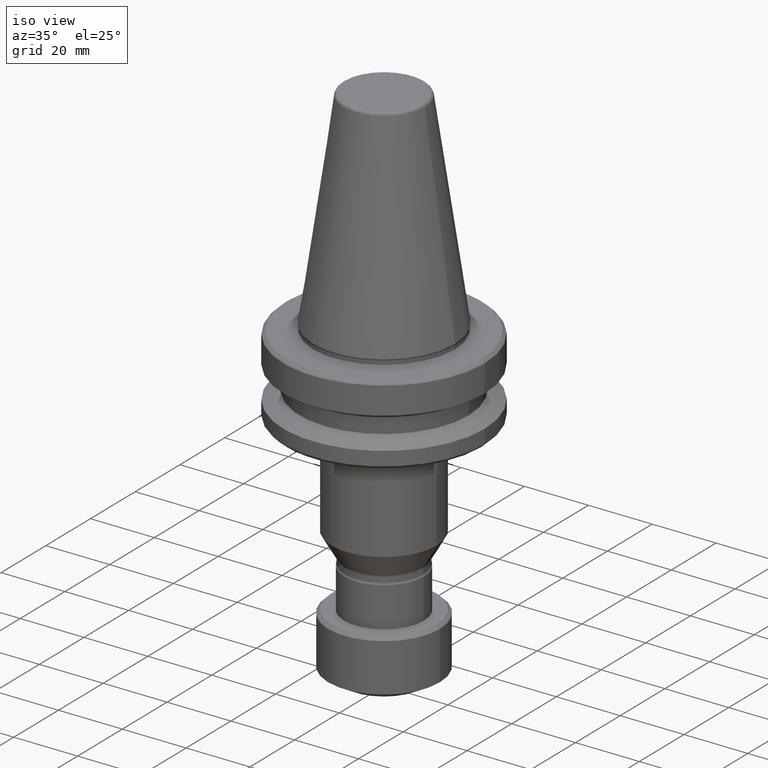
[diagram: clean part render]
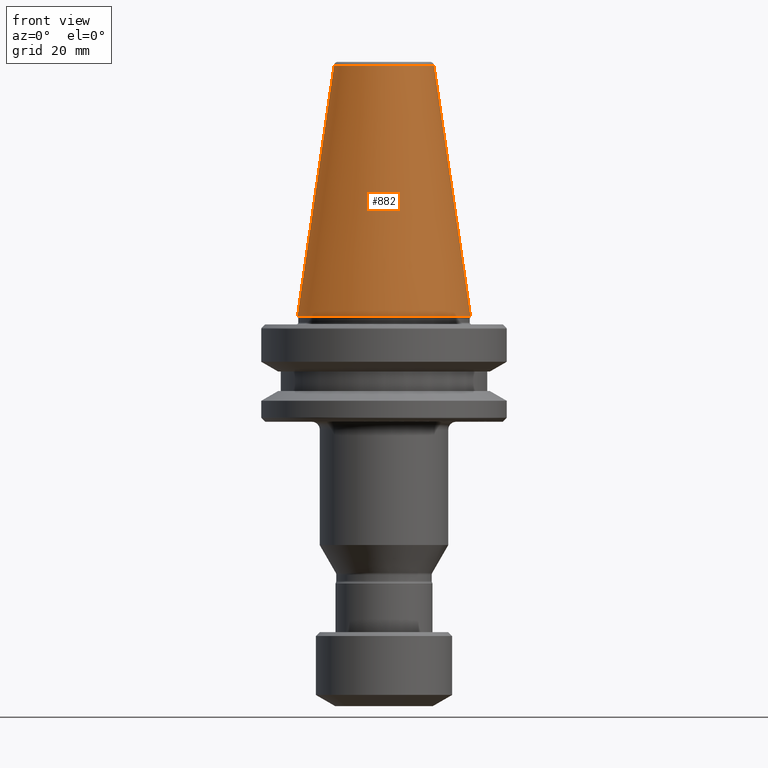
[diagram: tour spotlight — one face highlighted and labeled with its STEP entity id]
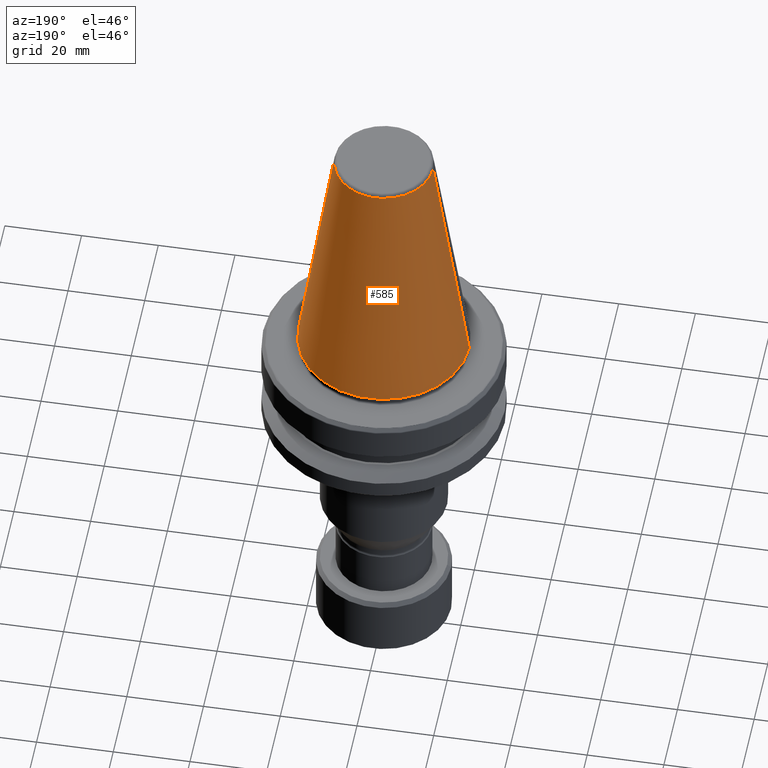
[diagram: tour spotlight — one face highlighted and labeled with its STEP entity id]
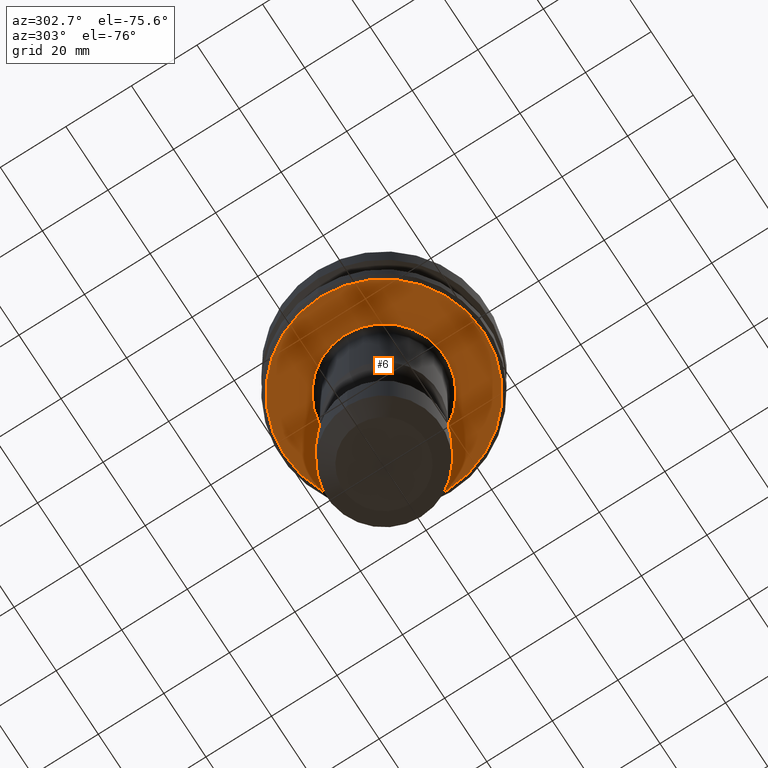
[diagram: tour spotlight — one face highlighted and labeled with its STEP entity id]
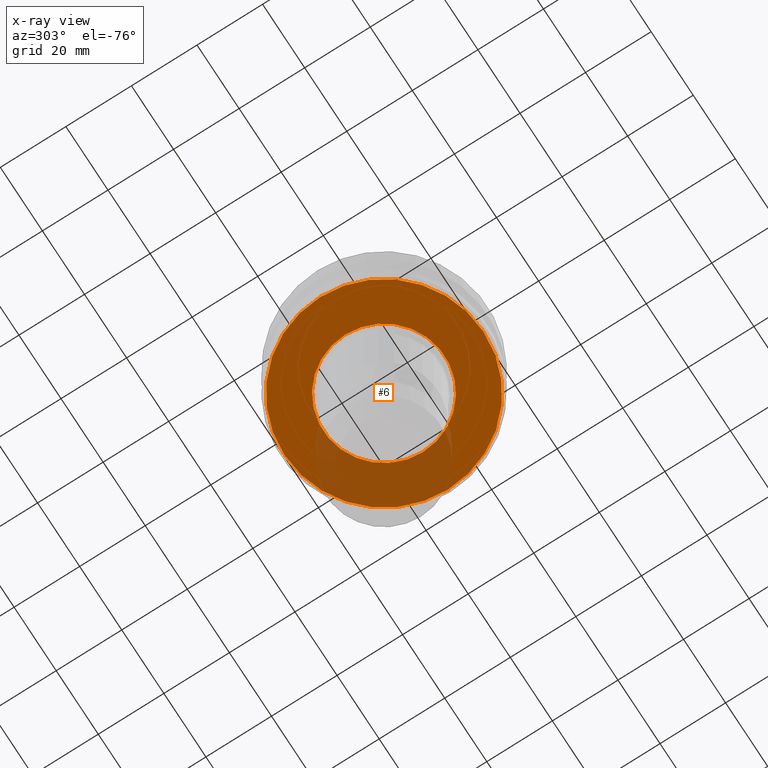
[diagram: x-ray of the same camera — body ghosted, this tour face saturated]
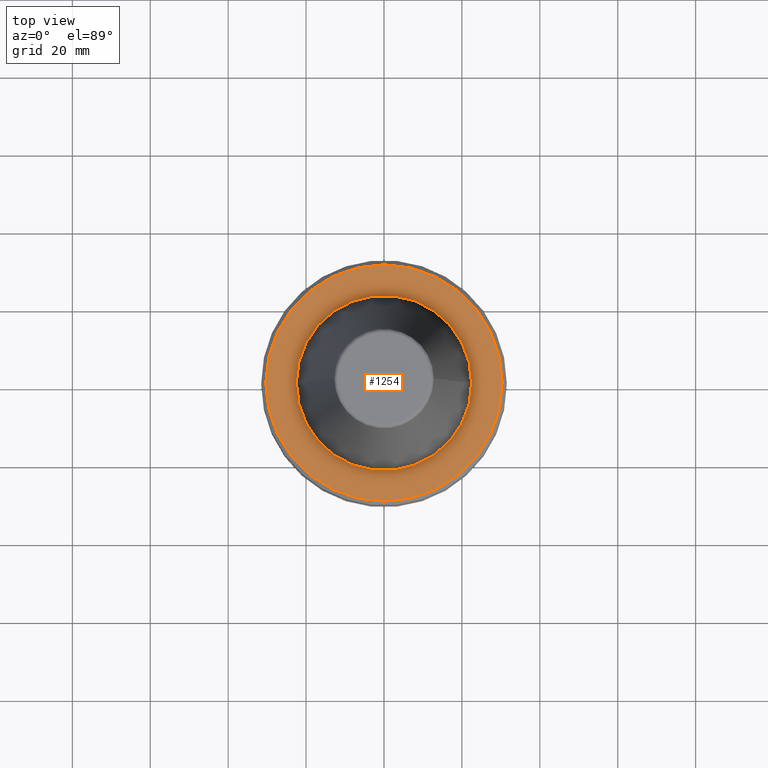
[diagram: tour spotlight — one face highlighted and labeled with its STEP entity id]
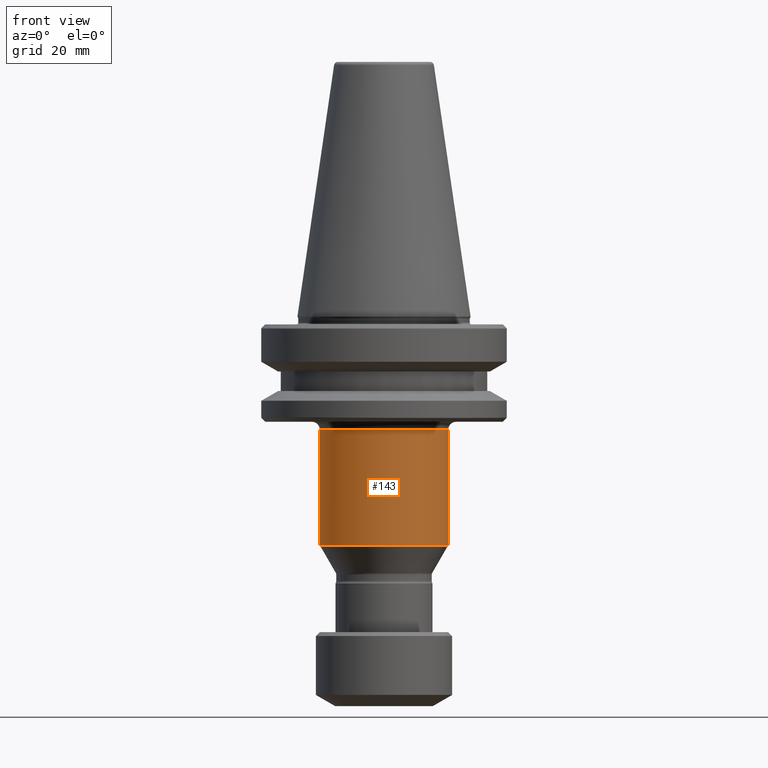
[diagram: tour spotlight — one face highlighted and labeled with its STEP entity id]
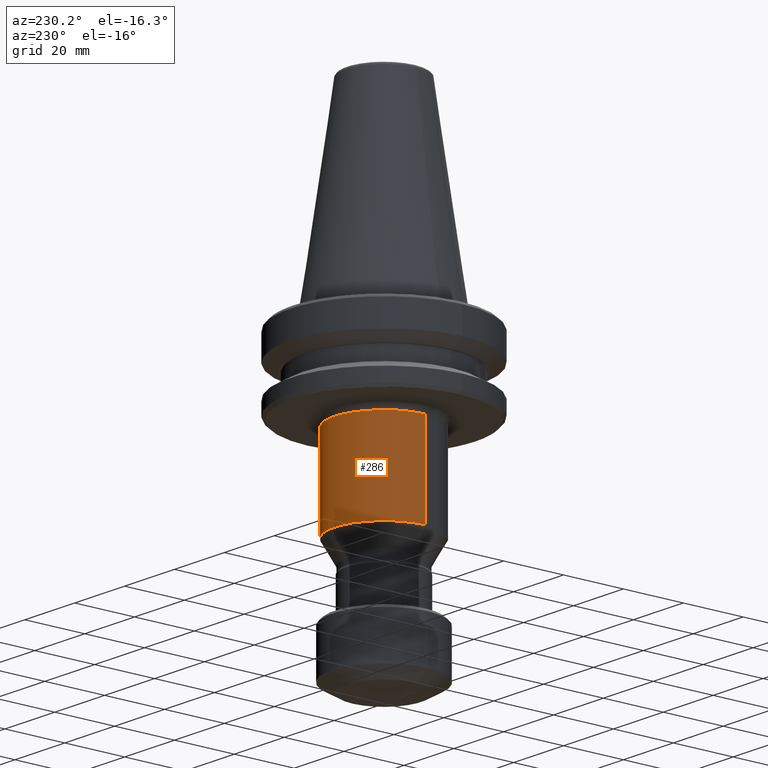
[diagram: tour spotlight — one face highlighted and labeled with its STEP entity id]
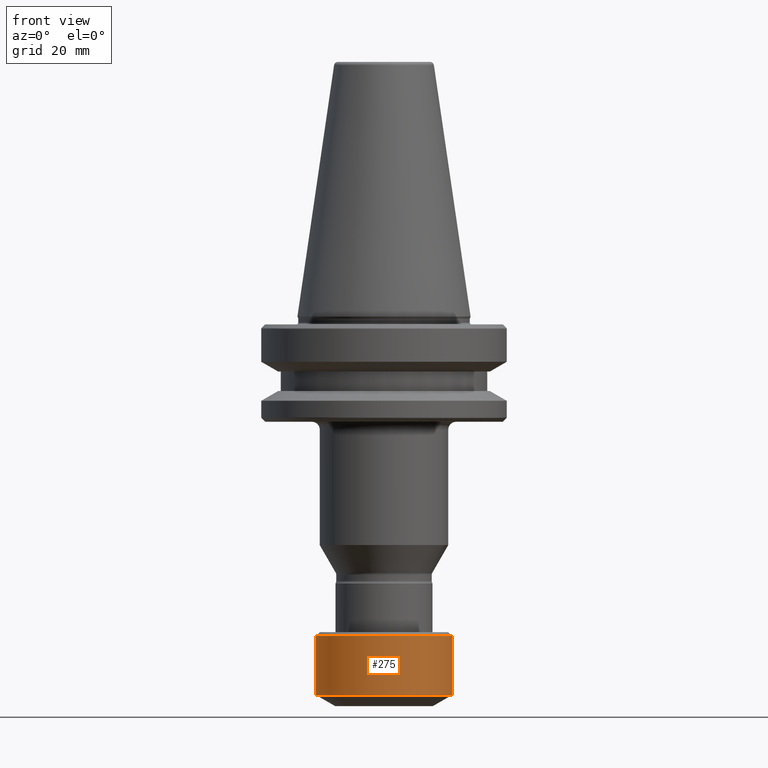
[diagram: tour spotlight — one face highlighted and labeled with its STEP entity id]
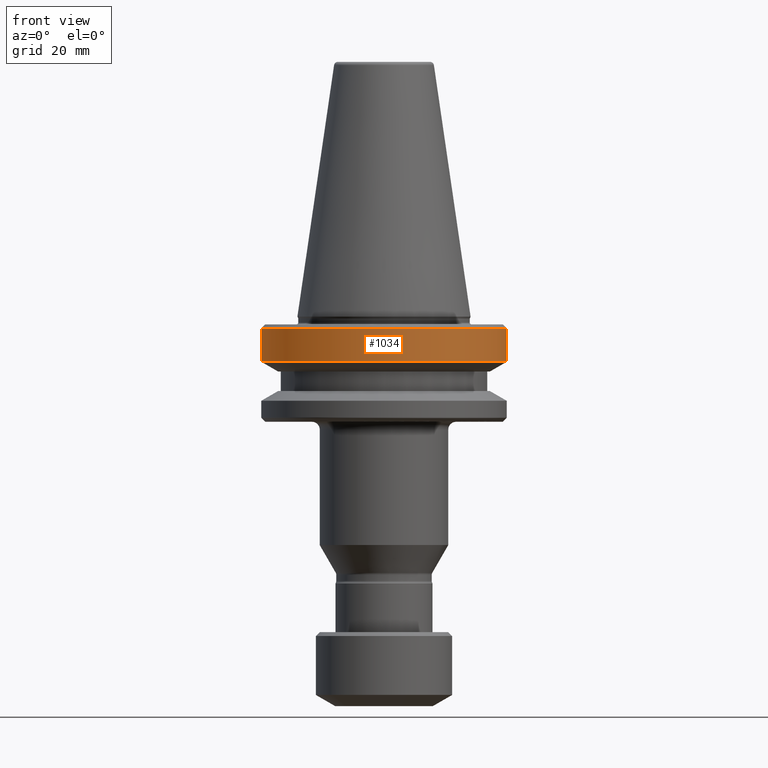
[diagram: tour spotlight — one face highlighted and labeled with its STEP entity id]
A machine part: a face-by-face anatomy tour. The part has 61 B-rep faces; the first image is the clean iso view, then the 8 largest visible faces are spotlighted one at a time (largest first), each with its STEP entity span.

Face 1 — front view, entity #882. In plain terms, the highlighted conical surface has half-angle 8.297 deg.
Definition (entity closure, byte-faithful):
#3 = CIRCLE ( 'NONE', #532, 22.22500000000000500 ) ;
#54 = CIRCLE ( 'NONE', #1477, 12.81219950706224800 ) ;
#76 = DIRECTION ( 'NONE',  ( -0.0000000000000000000, -0.0000000000000000000, 1.000000000000000000 ) ) ;
#93 = CARTESIAN_POINT ( 'NONE',  ( 12.81219950706224800, 1.569041911636107800E-015, 64.54430822726730800 ) ) ;
#104 = EDGE_CURVE ( 'NONE', #1341, #851, #515, .T. ) ;
#239 = CONICAL_SURFACE ( 'NONE', #944, 12.81219950706224800, 0.1448138465474191100 ) ;
#274 = FACE_OUTER_BOUND ( 'NONE', #1332, .T. ) ;
#378 = VECTOR ( 'NONE', #977, 1000.000000000000000 ) ;
#383 = LINE ( 'NONE', #93, #378 ) ;
#408 = CARTESIAN_POINT ( 'NONE',  ( 0.0000000000000000000, 0.0000000000000000000, 64.54430822726730800 ) ) ;
#449 = EDGE_CURVE ( 'NONE', #923, #969, #383, .T. ) ;
#507 = VECTOR ( 'NONE', #1126, 1000.000000000000000 ) ;
#515 = LINE ( 'NONE', #1455, #507 ) ;
#532 = AXIS2_PLACEMENT_3D ( 'NONE', #964, #76, #1084 ) ;
#705 = ORIENTED_EDGE ( 'NONE', *, *, #104, .T. ) ;
#716 = CARTESIAN_POINT ( 'NONE',  ( 0.0000000000000000000, 0.0000000000000000000, 64.54430822726730800 ) ) ;
#729 = DIRECTION ( 'NONE',  ( 0.0000000000000000000, 0.0000000000000000000, -1.000000000000000000 ) ) ;
#851 = VERTEX_POINT ( 'NONE', #1468 ) ;
#861 = DIRECTION ( 'NONE',  ( 1.000000000000000000, 0.0000000000000000000, 0.0000000000000000000 ) ) ;
#882 = ADVANCED_FACE ( 'NONE', ( #274 ), #239, .T. ) ;
#923 = VERTEX_POINT ( 'NONE', #1253 ) ;
#944 = AXIS2_PLACEMENT_3D ( 'NONE', #408, #729, #1228 ) ;
#964 = CARTESIAN_POINT ( 'NONE',  ( 0.0000000000000000000, 0.0000000000000000000, 0.0000000000000000000 ) ) ;
#969 = VERTEX_POINT ( 'NONE', #1463 ) ;
#974 = CARTESIAN_POINT ( 'NONE',  ( -12.81219950706224800, 0.0000000000000000000, 64.54430822726730800 ) ) ;
#977 = DIRECTION ( 'NONE',  ( 0.1443082272673071000, 1.767266086135364600E-017, -0.9895327864921743500 ) ) ;
#1084 = DIRECTION ( 'NONE',  ( 1.000000000000000000, 0.0000000000000000000, 0.0000000000000000000 ) ) ;
#1119 = ORIENTED_EDGE ( 'NONE', *, *, #1286, .F. ) ;
#1126 = DIRECTION ( 'NONE',  ( -0.1443082272673071000, 0.0000000000000000000, -0.9895327864921743500 ) ) ;
#1228 = DIRECTION ( 'NONE',  ( -1.000000000000000000, 0.0000000000000000000, 0.0000000000000000000 ) ) ;
#1253 = CARTESIAN_POINT ( 'NONE',  ( 12.81219950706224800, 2.145409711370550300E-015, 64.54430822726730800 ) ) ;
#1286 = EDGE_CURVE ( 'NONE', #1341, #923, #54, .T. ) ;
#1302 = ORIENTED_EDGE ( 'NONE', *, *, #1364, .T. ) ;
#1332 = EDGE_LOOP ( 'NONE', ( #1384, #1119, #705, #1302 ) ) ;
#1341 = VERTEX_POINT ( 'NONE', #974 ) ;
#1364 = EDGE_CURVE ( 'NONE', #851, #969, #3, .T. ) ;
#1384 = ORIENTED_EDGE ( 'NONE', *, *, #449, .F. ) ;
#1455 = CARTESIAN_POINT ( 'NONE',  ( -12.81219950706224800, 0.0000000000000000000, 64.54430822726730800 ) ) ;
#1463 = CARTESIAN_POINT ( 'NONE',  ( 22.22500000000000500, 0.0000000000000000000, 0.0000000000000000000 ) ) ;
#1468 = CARTESIAN_POINT ( 'NONE',  ( -22.22500000000000500, 2.721777511104993200E-015, 0.0000000000000000000 ) ) ;
#1477 = AXIS2_PLACEMENT_3D ( 'NONE', #716, #1610, #861 ) ;
#1610 = DIRECTION ( 'NONE',  ( -0.0000000000000000000, -0.0000000000000000000, 1.000000000000000000 ) ) ;

Face 2 — auxiliary view, entity #585. In plain terms, the highlighted conical surface has half-angle 8.297 deg.
Definition (entity closure, byte-faithful):
#41 = CARTESIAN_POINT ( 'NONE',  ( 0.0000000000000000000, 0.0000000000000000000, 0.0000000000000000000 ) ) ;
#93 = CARTESIAN_POINT ( 'NONE',  ( 12.81219950706224800, 1.569041911636107800E-015, 64.54430822726730800 ) ) ;
#104 = EDGE_CURVE ( 'NONE', #1341, #851, #515, .T. ) ;
#185 = CIRCLE ( 'NONE', #998, 22.22500000000000500 ) ;
#199 = DIRECTION ( 'NONE',  ( 1.000000000000000000, 0.0000000000000000000, 0.0000000000000000000 ) ) ;
#334 = CONICAL_SURFACE ( 'NONE', #483, 12.81219950706224800, 0.1448138465474191100 ) ;
#340 = FACE_OUTER_BOUND ( 'NONE', #1378, .T. ) ;
#363 = CIRCLE ( 'NONE', #1629, 12.81219950706224800 ) ;
#378 = VECTOR ( 'NONE', #977, 1000.000000000000000 ) ;
#383 = LINE ( 'NONE', #93, #378 ) ;
#449 = EDGE_CURVE ( 'NONE', #923, #969, #383, .T. ) ;
#482 = EDGE_CURVE ( 'NONE', #923, #1341, #363, .T. ) ;
#483 = AXIS2_PLACEMENT_3D ( 'NONE', #746, #855, #1272 ) ;
#507 = VECTOR ( 'NONE', #1126, 1000.000000000000000 ) ;
#515 = LINE ( 'NONE', #1455, #507 ) ;
#585 = ADVANCED_FACE ( 'NONE', ( #340 ), #334, .T. ) ;
#746 = CARTESIAN_POINT ( 'NONE',  ( 0.0000000000000000000, 0.0000000000000000000, 64.54430822726730800 ) ) ;
#825 = DIRECTION ( 'NONE',  ( 1.000000000000000000, 0.0000000000000000000, 0.0000000000000000000 ) ) ;
#851 = VERTEX_POINT ( 'NONE', #1468 ) ;
#855 = DIRECTION ( 'NONE',  ( 0.0000000000000000000, 0.0000000000000000000, -1.000000000000000000 ) ) ;
#923 = VERTEX_POINT ( 'NONE', #1253 ) ;
#966 = CARTESIAN_POINT ( 'NONE',  ( 0.0000000000000000000, 0.0000000000000000000, 64.54430822726730800 ) ) ;
#969 = VERTEX_POINT ( 'NONE', #1463 ) ;
#974 = CARTESIAN_POINT ( 'NONE',  ( -12.81219950706224800, 0.0000000000000000000, 64.54430822726730800 ) ) ;
#977 = DIRECTION ( 'NONE',  ( 0.1443082272673071000, 1.767266086135364600E-017, -0.9895327864921743500 ) ) ;
#998 = AXIS2_PLACEMENT_3D ( 'NONE', #41, #1168, #199 ) ;
#1048 = EDGE_CURVE ( 'NONE', #969, #851, #185, .T. ) ;
#1082 = ORIENTED_EDGE ( 'NONE', *, *, #482, .F. ) ;
#1090 = ORIENTED_EDGE ( 'NONE', *, *, #104, .F. ) ;
#1126 = DIRECTION ( 'NONE',  ( -0.1443082272673071000, 0.0000000000000000000, -0.9895327864921743500 ) ) ;
#1168 = DIRECTION ( 'NONE',  ( -0.0000000000000000000, -0.0000000000000000000, 1.000000000000000000 ) ) ;
#1200 = ORIENTED_EDGE ( 'NONE', *, *, #449, .T. ) ;
#1253 = CARTESIAN_POINT ( 'NONE',  ( 12.81219950706224800, 2.145409711370550300E-015, 64.54430822726730800 ) ) ;
#1264 = ORIENTED_EDGE ( 'NONE', *, *, #1048, .T. ) ;
#1272 = DIRECTION ( 'NONE',  ( -1.000000000000000000, 0.0000000000000000000, 0.0000000000000000000 ) ) ;
#1341 = VERTEX_POINT ( 'NONE', #974 ) ;
#1378 = EDGE_LOOP ( 'NONE', ( #1082, #1200, #1264, #1090 ) ) ;
#1455 = CARTESIAN_POINT ( 'NONE',  ( -12.81219950706224800, 0.0000000000000000000, 64.54430822726730800 ) ) ;
#1463 = CARTESIAN_POINT ( 'NONE',  ( 22.22500000000000500, 0.0000000000000000000, 0.0000000000000000000 ) ) ;
#1468 = CARTESIAN_POINT ( 'NONE',  ( -22.22500000000000500, 2.721777511104993200E-015, 0.0000000000000000000 ) ) ;
#1594 = DIRECTION ( 'NONE',  ( -0.0000000000000000000, -0.0000000000000000000, 1.000000000000000000 ) ) ;
#1629 = AXIS2_PLACEMENT_3D ( 'NONE', #966, #1594, #825 ) ;

Face 3 — auxiliary view, entity #6. An x-ray twin of the same camera follows (body ghosted, this face saturated) — the face is partly hidden behind the body. In plain terms, the highlighted planar face has unit normal (0, 0, -1).
Definition (entity closure, byte-faithful):
#6 = ADVANCED_FACE ( 'NONE', ( #572, #1299 ), #793, .T. ) ;
#65 = EDGE_CURVE ( 'NONE', #1124, #644, #519, .T. ) ;
#85 = VERTEX_POINT ( 'NONE', #1311 ) ;
#110 = EDGE_CURVE ( 'NONE', #85, #848, #511, .T. ) ;
#173 = CARTESIAN_POINT ( 'NONE',  ( -30.33431457505076200, 3.732201245991191800E-015, -26.99999999999999600 ) ) ;
#193 = AXIS2_PLACEMENT_3D ( 'NONE', #725, #1442, #878 ) ;
#217 = DIRECTION ( 'NONE',  ( 0.0000000000000000000, 0.0000000000000000000, -1.000000000000000000 ) ) ;
#233 = AXIS2_PLACEMENT_3D ( 'NONE', #1195, #1191, #1085 ) ;
#355 = CIRCLE ( 'NONE', #1499, 30.33431457505076200 ) ;
#362 = CIRCLE ( 'NONE', #193, 18.49999999999999600 ) ;
#406 = CARTESIAN_POINT ( 'NONE',  ( 18.49999999999999600, 2.265596578422603000E-015, -27.00000000000000700 ) ) ;
#469 = EDGE_CURVE ( 'NONE', #848, #85, #355, .T. ) ;
#511 = CIRCLE ( 'NONE', #529, 30.33431457505076200 ) ;
#519 = CIRCLE ( 'NONE', #233, 18.49999999999999600 ) ;
#529 = AXIS2_PLACEMENT_3D ( 'NONE', #1390, #1397, #1132 ) ;
#567 = EDGE_CURVE ( 'NONE', #644, #1124, #362, .T. ) ;
#572 = FACE_BOUND ( 'NONE', #856, .T. ) ;
#644 = VERTEX_POINT ( 'NONE', #406 ) ;
#659 = CARTESIAN_POINT ( 'NONE',  ( -18.49999999999999600, 0.0000000000000000000, -27.00000000000000700 ) ) ;
#689 = ORIENTED_EDGE ( 'NONE', *, *, #469, .F. ) ;
#690 = DIRECTION ( 'NONE',  ( -0.0000000000000000000, -0.0000000000000000000, 1.000000000000000000 ) ) ;
#721 = EDGE_LOOP ( 'NONE', ( #1309, #689 ) ) ;
#725 = CARTESIAN_POINT ( 'NONE',  ( 0.0000000000000000000, 0.0000000000000000000, -27.00000000000000400 ) ) ;
#793 = PLANE ( 'NONE',  #1404 ) ;
#848 = VERTEX_POINT ( 'NONE', #173 ) ;
#856 = EDGE_LOOP ( 'NONE', ( #1073, #1556 ) ) ;
#871 = DIRECTION ( 'NONE',  ( -1.000000000000000000, 0.0000000000000000000, -0.0000000000000000000 ) ) ;
#878 = DIRECTION ( 'NONE',  ( -1.000000000000000000, 0.0000000000000000000, 0.0000000000000000000 ) ) ;
#1073 = ORIENTED_EDGE ( 'NONE', *, *, #65, .T. ) ;
#1085 = DIRECTION ( 'NONE',  ( -1.000000000000000000, 0.0000000000000000000, 0.0000000000000000000 ) ) ;
#1124 = VERTEX_POINT ( 'NONE', #659 ) ;
#1132 = DIRECTION ( 'NONE',  ( 1.000000000000000000, 0.0000000000000000000, 0.0000000000000000000 ) ) ;
#1191 = DIRECTION ( 'NONE',  ( -0.0000000000000000000, -0.0000000000000000000, 1.000000000000000000 ) ) ;
#1195 = CARTESIAN_POINT ( 'NONE',  ( 0.0000000000000000000, 0.0000000000000000000, -27.00000000000000400 ) ) ;
#1299 = FACE_OUTER_BOUND ( 'NONE', #721, .T. ) ;
#1309 = ORIENTED_EDGE ( 'NONE', *, *, #110, .F. ) ;
#1311 = CARTESIAN_POINT ( 'NONE',  ( 30.33431457505076200, 0.0000000000000000000, -26.99999999999999600 ) ) ;
#1322 = CARTESIAN_POINT ( 'NONE',  ( 0.0000000000000000000, 3.088089149698245900E-015, -27.00000000000000400 ) ) ;
#1390 = CARTESIAN_POINT ( 'NONE',  ( 0.0000000000000000000, 0.0000000000000000000, -26.99999999999999600 ) ) ;
#1397 = DIRECTION ( 'NONE',  ( -0.0000000000000000000, -0.0000000000000000000, 1.000000000000000000 ) ) ;
#1404 = AXIS2_PLACEMENT_3D ( 'NONE', #1322, #217, #871 ) ;
#1415 = DIRECTION ( 'NONE',  ( 1.000000000000000000, 0.0000000000000000000, 0.0000000000000000000 ) ) ;
#1442 = DIRECTION ( 'NONE',  ( -0.0000000000000000000, -0.0000000000000000000, 1.000000000000000000 ) ) ;
#1499 = AXIS2_PLACEMENT_3D ( 'NONE', #1504, #690, #1415 ) ;
#1504 = CARTESIAN_POINT ( 'NONE',  ( 0.0000000000000000000, 0.0000000000000000000, -26.99999999999999600 ) ) ;
#1556 = ORIENTED_EDGE ( 'NONE', *, *, #567, .T. ) ;

Face 4 — top view, entity #1254. In plain terms, the highlighted planar face has unit normal (0, -0, 1).
Definition (entity closure, byte-faithful):
#66 = FACE_OUTER_BOUND ( 'NONE', #800, .T. ) ;
#81 = FACE_BOUND ( 'NONE', #305, .T. ) ;
#107 = CIRCLE ( 'NONE', #680, 30.33431457505075800 ) ;
#120 = DIRECTION ( 'NONE',  ( -0.0000000000000000000, -0.0000000000000000000, 1.000000000000000000 ) ) ;
#251 = CARTESIAN_POINT ( 'NONE',  ( 0.0000000000000000000, 0.0000000000000000000, -2.000000000000001800 ) ) ;
#267 = EDGE_CURVE ( 'NONE', #1261, #1503, #455, .T. ) ;
#305 = EDGE_LOOP ( 'NONE', ( #660, #1164 ) ) ;
#391 = DIRECTION ( 'NONE',  ( 1.000000000000000000, 0.0000000000000000000, 0.0000000000000000000 ) ) ;
#444 = CARTESIAN_POINT ( 'NONE',  ( 30.33431457505075800, 0.0000000000000000000, -2.000000000000001800 ) ) ;
#455 = CIRCLE ( 'NONE', #1466, 22.50000000000000000 ) ;
#526 = CARTESIAN_POINT ( 'NONE',  ( 0.0000000000000000000, 0.0000000000000000000, -2.000000000000001800 ) ) ;
#660 = ORIENTED_EDGE ( 'NONE', *, *, #1491, .F. ) ;
#680 = AXIS2_PLACEMENT_3D ( 'NONE', #526, #1500, #686 ) ;
#684 = DIRECTION ( 'NONE',  ( 1.000000000000000000, 0.0000000000000000000, 0.0000000000000000000 ) ) ;
#686 = DIRECTION ( 'NONE',  ( 1.000000000000000000, 0.0000000000000000000, 0.0000000000000000000 ) ) ;
#703 = CARTESIAN_POINT ( 'NONE',  ( 22.50000000000000000, 0.0000000000000000000, -2.000000000000001300 ) ) ;
#786 = VERTEX_POINT ( 'NONE', #444 ) ;
#800 = EDGE_LOOP ( 'NONE', ( #1407, #1148 ) ) ;
#853 = PLANE ( 'NONE',  #1409 ) ;
#898 = CARTESIAN_POINT ( 'NONE',  ( 0.0000000000000000000, 0.0000000000000000000, -2.000000000000001800 ) ) ;
#988 = DIRECTION ( 'NONE',  ( 0.0000000000000000000, -0.0000000000000000000, 1.000000000000000000 ) ) ;
#1015 = CIRCLE ( 'NONE', #1643, 30.33431457505075800 ) ;
#1148 = ORIENTED_EDGE ( 'NONE', *, *, #1554, .T. ) ;
#1164 = ORIENTED_EDGE ( 'NONE', *, *, #267, .F. ) ;
#1215 = DIRECTION ( 'NONE',  ( -0.0000000000000000000, -0.0000000000000000000, 1.000000000000000000 ) ) ;
#1217 = EDGE_CURVE ( 'NONE', #786, #1343, #107, .T. ) ;
#1254 = ADVANCED_FACE ( 'NONE', ( #66, #81 ), #853, .T. ) ;
#1261 = VERTEX_POINT ( 'NONE', #1425 ) ;
#1278 = CARTESIAN_POINT ( 'NONE',  ( 0.0000000000000000000, 0.0000000000000000000, -2.000000000000001800 ) ) ;
#1305 = AXIS2_PLACEMENT_3D ( 'NONE', #251, #1215, #391 ) ;
#1312 = CARTESIAN_POINT ( 'NONE',  ( 0.0000000000000000000, 0.0000000000000000000, -2.000000000000002700 ) ) ;
#1343 = VERTEX_POINT ( 'NONE', #1599 ) ;
#1407 = ORIENTED_EDGE ( 'NONE', *, *, #1217, .T. ) ;
#1409 = AXIS2_PLACEMENT_3D ( 'NONE', #1312, #988, #1608 ) ;
#1425 = CARTESIAN_POINT ( 'NONE',  ( -22.50000000000000000, 2.755455298081544800E-015, -2.000000000000001300 ) ) ;
#1456 = CIRCLE ( 'NONE', #1305, 22.50000000000000000 ) ;
#1466 = AXIS2_PLACEMENT_3D ( 'NONE', #1278, #120, #684 ) ;
#1491 = EDGE_CURVE ( 'NONE', #1503, #1261, #1456, .T. ) ;
#1500 = DIRECTION ( 'NONE',  ( -0.0000000000000000000, -0.0000000000000000000, 1.000000000000000000 ) ) ;
#1503 = VERTEX_POINT ( 'NONE', #703 ) ;
#1554 = EDGE_CURVE ( 'NONE', #1343, #786, #1015, .T. ) ;
#1586 = DIRECTION ( 'NONE',  ( -0.0000000000000000000, -0.0000000000000000000, 1.000000000000000000 ) ) ;
#1599 = CARTESIAN_POINT ( 'NONE',  ( -30.33431457505075800, 3.732201245991191100E-015, -2.000000000000001800 ) ) ;
#1608 = DIRECTION ( 'NONE',  ( 1.000000000000000000, 0.0000000000000000000, 0.0000000000000000000 ) ) ;
#1642 = DIRECTION ( 'NONE',  ( 1.000000000000000000, 0.0000000000000000000, 0.0000000000000000000 ) ) ;
#1643 = AXIS2_PLACEMENT_3D ( 'NONE', #898, #1586, #1642 ) ;

Face 5 — front view, entity #143. In plain terms, the highlighted cylindrical surface (partial cylindrical patch) has radius 16.5 mm, axis along (-0, -0, 1).
Definition (entity closure, byte-faithful):
#10 = EDGE_CURVE ( 'NONE', #226, #895, #568, .T. ) ;
#28 = EDGE_CURVE ( 'NONE', #226, #1423, #563, .T. ) ;
#101 = EDGE_LOOP ( 'NONE', ( #842, #806, #1376, #766 ) ) ;
#121 = CARTESIAN_POINT ( 'NONE',  ( 16.49999999999999300, 0.0000000000000000000, -58.63878406783228300 ) ) ;
#143 = ADVANCED_FACE ( 'NONE', ( #503 ), #487, .T. ) ;
#169 = CARTESIAN_POINT ( 'NONE',  ( -16.49999999999999300, 2.020667218593132300E-015, -58.63878406783228300 ) ) ;
#226 = VERTEX_POINT ( 'NONE', #169 ) ;
#253 = CARTESIAN_POINT ( 'NONE',  ( 16.49999999999999300, 0.0000000000000000000, 88.34764052968309000 ) ) ;
#360 = EDGE_CURVE ( 'NONE', #890, #1423, #420, .T. ) ;
#394 = VECTOR ( 'NONE', #1103, 1000.000000000000000 ) ;
#402 = LINE ( 'NONE', #253, #394 ) ;
#413 = AXIS2_PLACEMENT_3D ( 'NONE', #486, #465, #826 ) ;
#420 = CIRCLE ( 'NONE', #413, 16.49999999999999300 ) ;
#421 = EDGE_CURVE ( 'NONE', #895, #890, #402, .T. ) ;
#465 = DIRECTION ( 'NONE',  ( 0.0000000000000000000, 0.0000000000000000000, -1.000000000000000000 ) ) ;
#486 = CARTESIAN_POINT ( 'NONE',  ( 0.0000000000000000000, 0.0000000000000000000, -29.00000000000001100 ) ) ;
#487 = CYLINDRICAL_SURFACE ( 'NONE', #1109, 16.49999999999999300 ) ;
#503 = FACE_OUTER_BOUND ( 'NONE', #101, .T. ) ;
#539 = VECTOR ( 'NONE', #1631, 1000.000000000000000 ) ;
#563 = LINE ( 'NONE', #1561, #539 ) ;
#568 = CIRCLE ( 'NONE', #1473, 16.49999999999999300 ) ;
#766 = ORIENTED_EDGE ( 'NONE', *, *, #360, .T. ) ;
#806 = ORIENTED_EDGE ( 'NONE', *, *, #10, .T. ) ;
#826 = DIRECTION ( 'NONE',  ( -1.000000000000000000, 0.0000000000000000000, 0.0000000000000000000 ) ) ;
#842 = ORIENTED_EDGE ( 'NONE', *, *, #28, .F. ) ;
#863 = CARTESIAN_POINT ( 'NONE',  ( 0.0000000000000000000, 0.0000000000000000000, 88.34764052968309000 ) ) ;
#887 = DIRECTION ( 'NONE',  ( 1.000000000000000000, 0.0000000000000000000, 0.0000000000000000000 ) ) ;
#890 = VERTEX_POINT ( 'NONE', #1333 ) ;
#895 = VERTEX_POINT ( 'NONE', #121 ) ;
#1058 = DIRECTION ( 'NONE',  ( -0.0000000000000000000, -0.0000000000000000000, 1.000000000000000000 ) ) ;
#1103 = DIRECTION ( 'NONE',  ( -0.0000000000000000000, -0.0000000000000000000, 1.000000000000000000 ) ) ;
#1109 = AXIS2_PLACEMENT_3D ( 'NONE', #863, #1058, #1179 ) ;
#1179 = DIRECTION ( 'NONE',  ( 1.000000000000000000, 0.0000000000000000000, 0.0000000000000000000 ) ) ;
#1249 = DIRECTION ( 'NONE',  ( -0.0000000000000000000, -0.0000000000000000000, 1.000000000000000000 ) ) ;
#1333 = CARTESIAN_POINT ( 'NONE',  ( 16.49999999999999300, 0.0000000000000000000, -29.00000000000001100 ) ) ;
#1376 = ORIENTED_EDGE ( 'NONE', *, *, #421, .T. ) ;
#1382 = CARTESIAN_POINT ( 'NONE',  ( 0.0000000000000000000, 0.0000000000000000000, -58.63878406783228300 ) ) ;
#1423 = VERTEX_POINT ( 'NONE', #1502 ) ;
#1473 = AXIS2_PLACEMENT_3D ( 'NONE', #1382, #1249, #887 ) ;
#1502 = CARTESIAN_POINT ( 'NONE',  ( -16.49999999999999300, 2.020667218593132300E-015, -29.00000000000001100 ) ) ;
#1561 = CARTESIAN_POINT ( 'NONE',  ( -16.49999999999999300, 2.020667218593132300E-015, 88.34764052968309000 ) ) ;
#1631 = DIRECTION ( 'NONE',  ( -0.0000000000000000000, -0.0000000000000000000, 1.000000000000000000 ) ) ;

Face 6 — auxiliary view, entity #286. In plain terms, the highlighted cylindrical surface (partial cylindrical patch) has radius 16.5 mm, axis along (-0, -0, 1).
Definition (entity closure, byte-faithful):
#28 = EDGE_CURVE ( 'NONE', #226, #1423, #563, .T. ) ;
#40 = DIRECTION ( 'NONE',  ( 1.000000000000000000, 0.0000000000000000000, 0.0000000000000000000 ) ) ;
#71 = ORIENTED_EDGE ( 'NONE', *, *, #1080, .T. ) ;
#117 = DIRECTION ( 'NONE',  ( -1.000000000000000000, 0.0000000000000000000, 0.0000000000000000000 ) ) ;
#121 = CARTESIAN_POINT ( 'NONE',  ( 16.49999999999999300, 0.0000000000000000000, -58.63878406783228300 ) ) ;
#169 = CARTESIAN_POINT ( 'NONE',  ( -16.49999999999999300, 2.020667218593132300E-015, -58.63878406783228300 ) ) ;
#175 = CIRCLE ( 'NONE', #1288, 16.49999999999999300 ) ;
#223 = AXIS2_PLACEMENT_3D ( 'NONE', #1405, #1240, #40 ) ;
#226 = VERTEX_POINT ( 'NONE', #169 ) ;
#253 = CARTESIAN_POINT ( 'NONE',  ( 16.49999999999999300, 0.0000000000000000000, 88.34764052968309000 ) ) ;
#286 = ADVANCED_FACE ( 'NONE', ( #433 ), #430, .T. ) ;
#322 = CIRCLE ( 'NONE', #1207, 16.49999999999999300 ) ;
#394 = VECTOR ( 'NONE', #1103, 1000.000000000000000 ) ;
#402 = LINE ( 'NONE', #253, #394 ) ;
#421 = EDGE_CURVE ( 'NONE', #895, #890, #402, .T. ) ;
#430 = CYLINDRICAL_SURFACE ( 'NONE', #223, 16.49999999999999300 ) ;
#433 = FACE_OUTER_BOUND ( 'NONE', #1268, .T. ) ;
#539 = VECTOR ( 'NONE', #1631, 1000.000000000000000 ) ;
#563 = LINE ( 'NONE', #1561, #539 ) ;
#640 = EDGE_CURVE ( 'NONE', #1423, #890, #322, .T. ) ;
#790 = ORIENTED_EDGE ( 'NONE', *, *, #640, .T. ) ;
#802 = DIRECTION ( 'NONE',  ( -0.0000000000000000000, -0.0000000000000000000, 1.000000000000000000 ) ) ;
#890 = VERTEX_POINT ( 'NONE', #1333 ) ;
#895 = VERTEX_POINT ( 'NONE', #121 ) ;
#913 = ORIENTED_EDGE ( 'NONE', *, *, #421, .F. ) ;
#1004 = DIRECTION ( 'NONE',  ( 0.0000000000000000000, 0.0000000000000000000, -1.000000000000000000 ) ) ;
#1080 = EDGE_CURVE ( 'NONE', #895, #226, #175, .T. ) ;
#1103 = DIRECTION ( 'NONE',  ( -0.0000000000000000000, -0.0000000000000000000, 1.000000000000000000 ) ) ;
#1207 = AXIS2_PLACEMENT_3D ( 'NONE', #1617, #1004, #117 ) ;
#1240 = DIRECTION ( 'NONE',  ( -0.0000000000000000000, -0.0000000000000000000, 1.000000000000000000 ) ) ;
#1244 = ORIENTED_EDGE ( 'NONE', *, *, #28, .T. ) ;
#1268 = EDGE_LOOP ( 'NONE', ( #71, #1244, #790, #913 ) ) ;
#1288 = AXIS2_PLACEMENT_3D ( 'NONE', #1383, #802, #1483 ) ;
#1333 = CARTESIAN_POINT ( 'NONE',  ( 16.49999999999999300, 0.0000000000000000000, -29.00000000000001100 ) ) ;
#1383 = CARTESIAN_POINT ( 'NONE',  ( 0.0000000000000000000, 0.0000000000000000000, -58.63878406783228300 ) ) ;
#1405 = CARTESIAN_POINT ( 'NONE',  ( 0.0000000000000000000, 0.0000000000000000000, 88.34764052968309000 ) ) ;
#1423 = VERTEX_POINT ( 'NONE', #1502 ) ;
#1483 = DIRECTION ( 'NONE',  ( 1.000000000000000000, 0.0000000000000000000, 0.0000000000000000000 ) ) ;
#1502 = CARTESIAN_POINT ( 'NONE',  ( -16.49999999999999300, 2.020667218593132300E-015, -29.00000000000001100 ) ) ;
#1561 = CARTESIAN_POINT ( 'NONE',  ( -16.49999999999999300, 2.020667218593132300E-015, 88.34764052968309000 ) ) ;
#1617 = CARTESIAN_POINT ( 'NONE',  ( 0.0000000000000000000, 0.0000000000000000000, -29.00000000000001100 ) ) ;
#1631 = DIRECTION ( 'NONE',  ( -0.0000000000000000000, -0.0000000000000000000, 1.000000000000000000 ) ) ;

Face 7 — front view, entity #275. In plain terms, the highlighted cylindrical surface (partial cylindrical patch) has radius 17.499 mm, axis along (-0, -0, 1).
Definition (entity closure, byte-faithful):
#23 = AXIS2_PLACEMENT_3D ( 'NONE', #610, #1344, #933 ) ;
#47 = CARTESIAN_POINT ( 'NONE',  ( 0.0000000000000000000, 0.0000000000000000000, -97.11324865405248400 ) ) ;
#155 = CIRCLE ( 'NONE', #1492, 17.49901631902814400 ) ;
#186 = CIRCLE ( 'NONE', #1152, 17.49901631902814400 ) ;
#196 = CARTESIAN_POINT ( 'NONE',  ( 17.49901631902814400, 0.0000000000000000000, -80.99999999999904800 ) ) ;
#204 = DIRECTION ( 'NONE',  ( 1.000000000000000000, 0.0000000000000000000, 0.0000000000000000000 ) ) ;
#211 = EDGE_CURVE ( 'NONE', #1041, #744, #463, .T. ) ;
#263 = VECTOR ( 'NONE', #775, 1000.000000000000000 ) ;
#265 = LINE ( 'NONE', #315, #263 ) ;
#275 = ADVANCED_FACE ( 'NONE', ( #446 ), #437, .T. ) ;
#315 = CARTESIAN_POINT ( 'NONE',  ( -17.49901631902814400, 2.143011432332511200E-015, -80.99999999999904800 ) ) ;
#429 = ORIENTED_EDGE ( 'NONE', *, *, #849, .F. ) ;
#437 = CYLINDRICAL_SURFACE ( 'NONE', #23, 17.49901631902814400 ) ;
#440 = CARTESIAN_POINT ( 'NONE',  ( -17.49901631902814400, 2.143011432332511200E-015, -97.11324865405248400 ) ) ;
#446 = FACE_OUTER_BOUND ( 'NONE', #1257, .T. ) ;
#457 = VECTOR ( 'NONE', #742, 1000.000000000000000 ) ;
#463 = LINE ( 'NONE', #196, #457 ) ;
#506 = DIRECTION ( 'NONE',  ( -0.0000000000000000000, -0.0000000000000000000, 1.000000000000000000 ) ) ;
#592 = CARTESIAN_POINT ( 'NONE',  ( 17.49901631902814400, 2.143011432332511200E-015, -82.00000000000000000 ) ) ;
#610 = CARTESIAN_POINT ( 'NONE',  ( 0.0000000000000000000, 0.0000000000000000000, -80.99999999999904800 ) ) ;
#624 = VERTEX_POINT ( 'NONE', #865 ) ;
#696 = ORIENTED_EDGE ( 'NONE', *, *, #1129, .F. ) ;
#717 = ORIENTED_EDGE ( 'NONE', *, *, #1057, .T. ) ;
#742 = DIRECTION ( 'NONE',  ( -0.0000000000000000000, -0.0000000000000000000, 1.000000000000000000 ) ) ;
#744 = VERTEX_POINT ( 'NONE', #592 ) ;
#775 = DIRECTION ( 'NONE',  ( -0.0000000000000000000, -0.0000000000000000000, 1.000000000000000000 ) ) ;
#794 = CARTESIAN_POINT ( 'NONE',  ( 17.49901631902814400, 0.0000000000000000000, -97.11324865405248400 ) ) ;
#849 = EDGE_CURVE ( 'NONE', #1188, #624, #265, .T. ) ;
#865 = CARTESIAN_POINT ( 'NONE',  ( -17.49901631902814400, 0.0000000000000000000, -82.00000000000000000 ) ) ;
#933 = DIRECTION ( 'NONE',  ( 1.000000000000000000, 0.0000000000000000000, 0.0000000000000000000 ) ) ;
#939 = DIRECTION ( 'NONE',  ( -0.0000000000000000000, -0.0000000000000000000, 1.000000000000000000 ) ) ;
#995 = ORIENTED_EDGE ( 'NONE', *, *, #211, .T. ) ;
#1041 = VERTEX_POINT ( 'NONE', #794 ) ;
#1057 = EDGE_CURVE ( 'NONE', #1188, #1041, #186, .T. ) ;
#1129 = EDGE_CURVE ( 'NONE', #624, #744, #155, .T. ) ;
#1152 = AXIS2_PLACEMENT_3D ( 'NONE', #47, #939, #204 ) ;
#1182 = CARTESIAN_POINT ( 'NONE',  ( 0.0000000000000000000, 0.0000000000000000000, -82.00000000000000000 ) ) ;
#1188 = VERTEX_POINT ( 'NONE', #440 ) ;
#1257 = EDGE_LOOP ( 'NONE', ( #429, #717, #995, #696 ) ) ;
#1283 = DIRECTION ( 'NONE',  ( 1.000000000000000000, 0.0000000000000000000, 0.0000000000000000000 ) ) ;
#1344 = DIRECTION ( 'NONE',  ( -0.0000000000000000000, -0.0000000000000000000, 1.000000000000000000 ) ) ;
#1492 = AXIS2_PLACEMENT_3D ( 'NONE', #1182, #506, #1283 ) ;

Face 8 — front view, entity #1034. In plain terms, the highlighted cylindrical surface (partial cylindrical patch) has radius 31.5 mm, axis along (-0, -0, 1).
Definition (entity closure, byte-faithful):
#89 = VECTOR ( 'NONE', #1099, 1000.000000000000000 ) ;
#99 = LINE ( 'NONE', #533, #89 ) ;
#148 = CARTESIAN_POINT ( 'NONE',  ( 0.0000000000000000000, 0.0000000000000000000, 69.75694866325665100 ) ) ;
#150 = LINE ( 'NONE', #1486, #152 ) ;
#152 = VECTOR ( 'NONE', #1388, 1000.000000000000000 ) ;
#180 = CYLINDRICAL_SURFACE ( 'NONE', #1075, 31.50000000000000000 ) ;
#190 = FACE_OUTER_BOUND ( 'NONE', #1435, .T. ) ;
#244 = DIRECTION ( 'NONE',  ( -0.0000000000000000000, -0.0000000000000000000, 1.000000000000000000 ) ) ;
#281 = CARTESIAN_POINT ( 'NONE',  ( 31.49999999999999300, 0.0000000000000000000, -3.165685424949243700 ) ) ;
#291 = CIRCLE ( 'NONE', #341, 31.49999999999999300 ) ;
#330 = DIRECTION ( 'NONE',  ( -0.0000000000000000000, -0.0000000000000000000, 1.000000000000000000 ) ) ;
#341 = AXIS2_PLACEMENT_3D ( 'NONE', #764, #1549, #910 ) ;
#346 = ORIENTED_EDGE ( 'NONE', *, *, #1128, .F. ) ;
#533 = CARTESIAN_POINT ( 'NONE',  ( 31.50000000000000000, 0.0000000000000000000, 69.75694866325665100 ) ) ;
#662 = VERTEX_POINT ( 'NONE', #873 ) ;
#712 = VERTEX_POINT ( 'NONE', #281 ) ;
#764 = CARTESIAN_POINT ( 'NONE',  ( 0.0000000000000000000, 0.0000000000000000000, -3.165685424949243700 ) ) ;
#787 = DIRECTION ( 'NONE',  ( 1.000000000000000000, 0.0000000000000000000, 0.0000000000000000000 ) ) ;
#791 = EDGE_CURVE ( 'NONE', #1511, #712, #291, .T. ) ;
#803 = VERTEX_POINT ( 'NONE', #1461 ) ;
#833 = ORIENTED_EDGE ( 'NONE', *, *, #791, .F. ) ;
#873 = CARTESIAN_POINT ( 'NONE',  ( -31.50000000000000000, 3.857637417314162700E-015, -11.59985799368323700 ) ) ;
#910 = DIRECTION ( 'NONE',  ( 1.000000000000000000, 0.0000000000000000000, 0.0000000000000000000 ) ) ;
#1034 = ADVANCED_FACE ( 'NONE', ( #190 ), #180, .T. ) ;
#1064 = ORIENTED_EDGE ( 'NONE', *, *, #1251, .T. ) ;
#1075 = AXIS2_PLACEMENT_3D ( 'NONE', #148, #330, #787 ) ;
#1094 = AXIS2_PLACEMENT_3D ( 'NONE', #1097, #244, #1212 ) ;
#1097 = CARTESIAN_POINT ( 'NONE',  ( 0.0000000000000000000, 0.0000000000000000000, -11.59985799368323700 ) ) ;
#1099 = DIRECTION ( 'NONE',  ( -0.0000000000000000000, -0.0000000000000000000, 1.000000000000000000 ) ) ;
#1128 = EDGE_CURVE ( 'NONE', #662, #1511, #150, .T. ) ;
#1162 = CIRCLE ( 'NONE', #1094, 31.50000000000000000 ) ;
#1212 = DIRECTION ( 'NONE',  ( 1.000000000000000000, 0.0000000000000000000, 0.0000000000000000000 ) ) ;
#1251 = EDGE_CURVE ( 'NONE', #803, #712, #99, .T. ) ;
#1314 = CARTESIAN_POINT ( 'NONE',  ( -31.49999999999999300, 3.857637417314161900E-015, -3.165685424949243700 ) ) ;
#1388 = DIRECTION ( 'NONE',  ( -0.0000000000000000000, -0.0000000000000000000, 1.000000000000000000 ) ) ;
#1435 = EDGE_LOOP ( 'NONE', ( #346, #1633, #1064, #833 ) ) ;
#1444 = EDGE_CURVE ( 'NONE', #662, #803, #1162, .T. ) ;
#1461 = CARTESIAN_POINT ( 'NONE',  ( 31.50000000000000000, 0.0000000000000000000, -11.59985799368323700 ) ) ;
#1486 = CARTESIAN_POINT ( 'NONE',  ( -31.50000000000000000, 3.857637417314162700E-015, 69.75694866325665100 ) ) ;
#1511 = VERTEX_POINT ( 'NONE', #1314 ) ;
#1549 = DIRECTION ( 'NONE',  ( -0.0000000000000000000, -0.0000000000000000000, 1.000000000000000000 ) ) ;
#1633 = ORIENTED_EDGE ( 'NONE', *, *, #1444, .T. ) ;